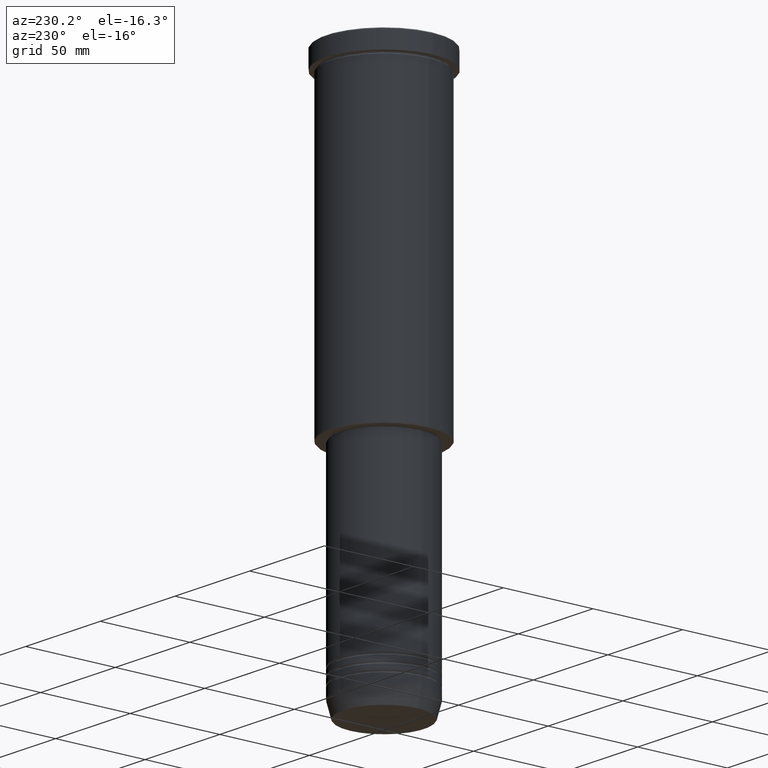
[diagram: clean part render]
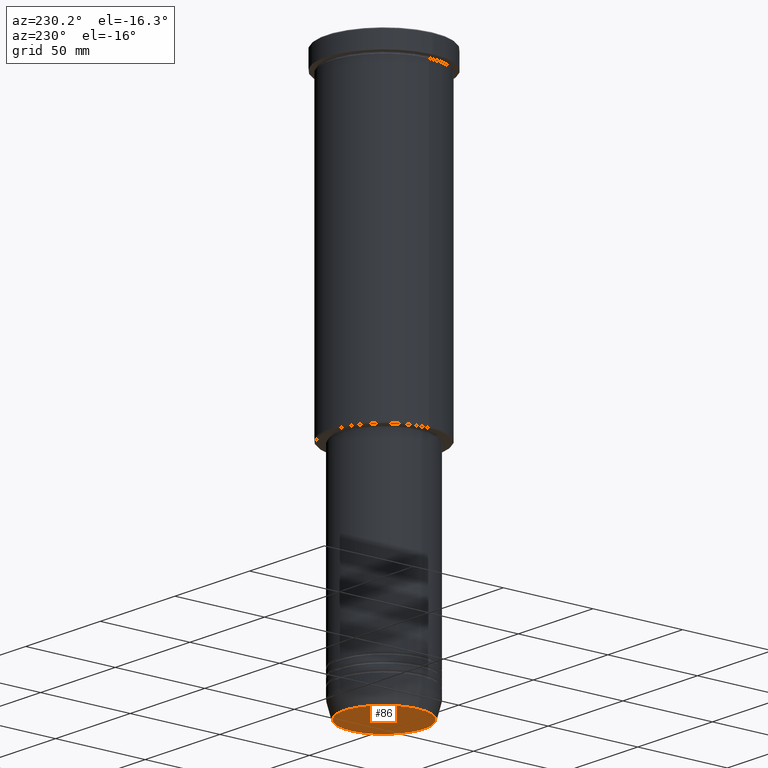
[diagram: same view with one face highlighted and labeled with its STEP entity id]
A machine part, auxiliary view. The second image highlights one B-rep face of the part: STEP entity #86.
In plain terms, the highlighted planar face has unit normal (0, -0, 1).
Its self-contained STEP definition (entity closure, byte-faithful):
#44 = EDGE_CURVE ( 'NONE', #1062, #405, #537, .T. ) ;
#86 = ADVANCED_FACE ( 'NONE', ( #349 ), #978, .F. ) ;
#134 = DIRECTION ( 'NONE',  ( 1.000000000000000000, 0.000000000000000000, 0.000000000000000000 ) ) ;
#349 = FACE_OUTER_BOUND ( 'NONE', #666, .T. ) ;
#405 = VERTEX_POINT ( 'NONE', #586 ) ;
#418 = ORIENTED_EDGE ( 'NONE', *, *, #1105, .T. ) ;
#537 = CIRCLE ( 'NONE', #696, 22.20479377413040467 ) ;
#586 = CARTESIAN_POINT ( 'NONE',  ( 22.20479377413040467, 0.000000000000000000, -300.0000000000000000 ) ) ;
#657 = AXIS2_PLACEMENT_3D ( 'NONE', #843, #1143, #1025 ) ;
#666 = EDGE_LOOP ( 'NONE', ( #418, #868 ) ) ;
#696 = AXIS2_PLACEMENT_3D ( 'NONE', #762, #1044, #134 ) ;
#698 = AXIS2_PLACEMENT_3D ( 'NONE', #1074, #986, #712 ) ;
#712 = DIRECTION ( 'NONE',  ( 1.000000000000000000, 0.000000000000000000, 0.000000000000000000 ) ) ;
#737 = CARTESIAN_POINT ( 'NONE',  ( -22.20479377413040467, 2.748875911406054788E-15, -300.0000000000000000 ) ) ;
#762 = CARTESIAN_POINT ( 'NONE',  ( 0.000000000000000000, 0.000000000000000000, -300.0000000000000000 ) ) ;
#778 = CIRCLE ( 'NONE', #657, 22.20479377413040467 ) ;
#843 = CARTESIAN_POINT ( 'NONE',  ( 0.000000000000000000, 0.000000000000000000, -300.0000000000000000 ) ) ;
#868 = ORIENTED_EDGE ( 'NONE', *, *, #44, .T. ) ;
#978 = PLANE ( 'NONE',  #698 ) ;
#986 = DIRECTION ( 'NONE',  ( 0.000000000000000000, -0.000000000000000000, 1.000000000000000000 ) ) ;
#1025 = DIRECTION ( 'NONE',  ( 1.000000000000000000, 0.000000000000000000, 0.000000000000000000 ) ) ;
#1044 = DIRECTION ( 'NONE',  ( 0.000000000000000000, 0.000000000000000000, -1.000000000000000000 ) ) ;
#1062 = VERTEX_POINT ( 'NONE', #737 ) ;
#1074 = CARTESIAN_POINT ( 'NONE',  ( 0.000000000000000000, 0.000000000000000000, -300.0000000000000000 ) ) ;
#1105 = EDGE_CURVE ( 'NONE', #405, #1062, #778, .T. ) ;
#1143 = DIRECTION ( 'NONE',  ( 0.000000000000000000, 0.000000000000000000, -1.000000000000000000 ) ) ;